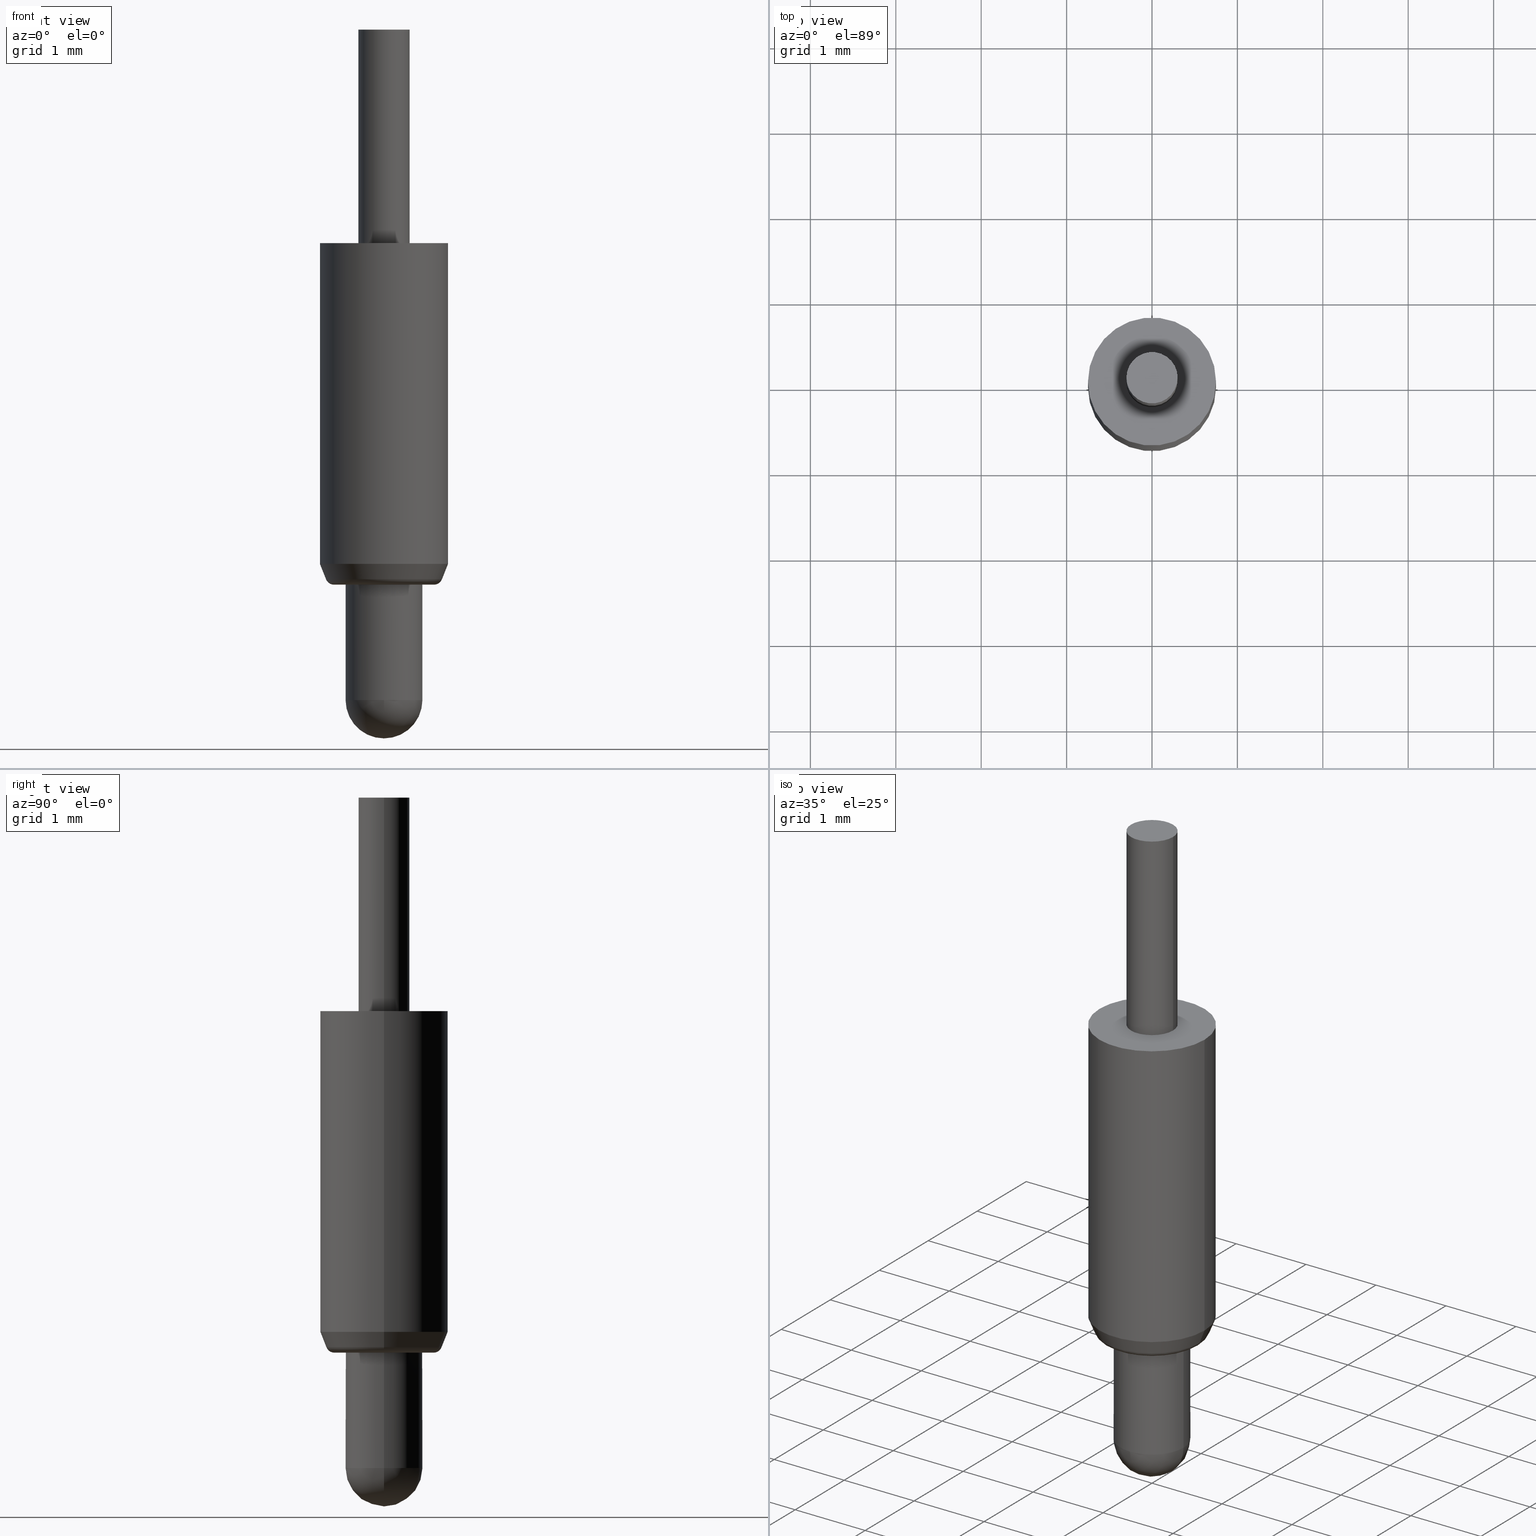
[diagram: canonical four-view strip — front | top / right | iso, engineering-drawing reading convention]
A machine part, canonical four-view strip (front | top / right | iso — engineering-drawing reading convention). The complete STEP part file that produces these views, byte-faithful:
ISO-10303-21;
HEADER;
FILE_DESCRIPTION (( 'STEP AP214' ),
    '1' );
FILE_NAME ('UEBK-12899_2017_08_28.STEP',
    '2017-08-29T11:48:51',
    ( '' ),
    ( '' ),
    'SwSTEP 2.0',
    'SolidWorks 2017',
    '' );
FILE_SCHEMA (( 'AUTOMOTIVE_DESIGN' ));
ENDSEC;

DATA;
#1 = PLANE ( 'NONE',  #302 ) ;
#2 = CIRCLE ( 'NONE', #178, 0.6784211071426866600 ) ;
#3 = VERTEX_POINT ( 'NONE', #106 ) ;
#4 = PRESENTATION_LAYER_ASSIGNMENT (  '', '', ( #55 ) ) ;
#5 = ORIENTED_EDGE ( 'NONE', *, *, #316, .T. ) ;
#6 = ORIENTED_EDGE ( 'NONE', *, *, #15, .F. ) ;
#7 = EDGE_LOOP ( 'NONE', ( #6, #317, #136 ) ) ;
#8 = PRODUCT_DEFINITION_CONTEXT ( 'detailed design', #366, 'design' ) ;
#9 = ADVANCED_FACE ( 'NONE', ( #240 ), #392, .T. ) ;
#10 = VECTOR ( 'NONE', #355, 1000.000000000000000 ) ;
#11 = SHAPE_DEFINITION_REPRESENTATION ( #175, #218 ) ;
#12 = EDGE_CURVE ( 'NONE', #266, #188, #50, .T. ) ;
#13 = AXIS2_PLACEMENT_3D ( 'NONE', #254, #154, #19 ) ;
#14 = DIRECTION ( 'NONE',  ( -0.0000000000000000000, 1.000000000000000000, 0.0000000000000000000 ) ) ;
#15 = EDGE_CURVE ( 'NONE', #144, #170, #217, .T. ) ;
#16 = COLOUR_RGB ( '',0.8274509803921568100, 0.6666666666666666300, 0.1294117647058823400 ) ;
#17 = DIRECTION ( 'NONE',  ( -0.0000000000000000000, -0.0000000000000000000, 1.000000000000000000 ) ) ;
#18 = DIRECTION ( 'NONE',  ( 1.000000000000000000, 0.0000000000000000000, 0.0000000000000000000 ) ) ;
#19 = DIRECTION ( 'NONE',  ( 1.000000000000000000, 0.0000000000000000000, 0.0000000000000000000 ) ) ;
#20 = LINE ( 'NONE', #165, #36 ) ;
#21 = CARTESIAN_POINT ( 'NONE',  ( -0.2999999999999999300, 3.673940397442058900E-017, 5.799999999999999800 ) ) ;
#22 = CARTESIAN_POINT ( 'NONE',  ( 0.2999999999999998200, 0.0000000000000000000, 8.300000000000000700 ) ) ;
#23 = FILL_AREA_STYLE ('',( #84 ) ) ;
#24 = CARTESIAN_POINT ( 'NONE',  ( 0.7499999999999995600, 0.0000000000000000000, 5.799999999999999800 ) ) ;
#25 = AXIS2_PLACEMENT_3D ( 'NONE', #189, #221, #47 ) ;
#26 = EDGE_LOOP ( 'NONE', ( #83, #292, #402, #235 ) ) ;
#27 = CARTESIAN_POINT ( 'NONE',  ( 0.0000000000000000000, 0.0000000000000000000, 1.799999999999999600 ) ) ;
#28 = APPLICATION_PROTOCOL_DEFINITION ( 'draft international standard', 'automotive_design', 1998, #233 ) ;
#29 = CARTESIAN_POINT ( 'NONE',  ( -0.5854911145946992700, 7.170198194176145800E-017, 1.899999999999999900 ) ) ;
#30 = AXIS2_PLACEMENT_3D ( 'NONE', #114, #252, #18 ) ;
#31 = AXIS2_PLACEMENT_3D ( 'NONE', #161, #248, #151 ) ;
#32 = DIRECTION ( 'NONE',  ( -0.3693259380318421000, 4.522938278527891600E-017, 0.9292999254798742800 ) ) ;
#33 = ORIENTED_EDGE ( 'NONE', *, *, #241, .F. ) ;
#34 = ORIENTED_EDGE ( 'NONE', *, *, #419, .F. ) ;
#35 = CARTESIAN_POINT ( 'NONE',  ( 0.0000000000000000000, 0.0000000000000000000, 5.799999999999999800 ) ) ;
#36 = VECTOR ( 'NONE', #32, 1000.000000000000100 ) ;
#37 = AXIS2_PLACEMENT_3D ( 'NONE', #35, #196, #395 ) ;
#38 = ORIENTED_EDGE ( 'NONE', *, *, #377, .F. ) ;
#39 = ORIENTED_EDGE ( 'NONE', *, *, #231, .T. ) ;
#40 = EDGE_LOOP ( 'NONE', ( #339, #210, #143, #391 ) ) ;
#41 = LINE ( 'NONE', #153, #270 ) ;
#42 = CIRCLE ( 'NONE', #406, 0.4499999999999997900 ) ;
#43 = CLOSED_SHELL ( 'NONE', ( #404, #9, #308, #271, #310, #141, #174, #343, #173, #207, #403, #177, #99, #344, #208 ) ) ;
#44 = ORIENTED_EDGE ( 'NONE', *, *, #275, .T. ) ;
#45 = FACE_OUTER_BOUND ( 'NONE', #216, .T. ) ;
#46 = CARTESIAN_POINT ( 'NONE',  ( -0.4499999999999997900, 5.510910596163086500E-017, 1.799999999999999600 ) ) ;
#47 = DIRECTION ( 'NONE',  ( 1.000000000000000000, 0.0000000000000000000, 0.0000000000000000000 ) ) ;
#48 = DIRECTION ( 'NONE',  ( -0.0000000000000000000, -0.0000000000000000000, 1.000000000000000000 ) ) ;
#49 = CARTESIAN_POINT ( 'NONE',  ( 0.0000000000000000000, 0.0000000000000000000, 0.4500000000000007300 ) ) ;
#50 = LINE ( 'NONE', #245, #384 ) ;
#51 = DIRECTION ( 'NONE',  ( 1.000000000000000000, 0.0000000000000000000, 0.0000000000000000000 ) ) ;
#52 = SURFACE_STYLE_USAGE ( .BOTH. , #253 ) ;
#53 = DIRECTION ( 'NONE',  ( 0.3693259380318421000, 0.0000000000000000000, 0.9292999254798742800 ) ) ;
#54 = ORIENTED_EDGE ( 'NONE', *, *, #142, .T. ) ;
#55 = STYLED_ITEM ( 'NONE', ( #69 ), #218 ) ;
#56 = DIRECTION ( 'NONE',  ( -0.0000000000000000000, -0.0000000000000000000, 1.000000000000000000 ) ) ;
#57 = CIRCLE ( 'NONE', #283, 0.2999999999999999900 ) ;
#58 = DIRECTION ( 'NONE',  ( -0.0000000000000000000, -0.0000000000000000000, 1.000000000000000000 ) ) ;
#59 = FILL_AREA_STYLE ('',( #338 ) ) ;
#60 = DIRECTION ( 'NONE',  ( 1.000000000000000000, 0.0000000000000000000, 0.0000000000000000000 ) ) ;
#61 = DIRECTION ( 'NONE',  ( 1.000000000000000000, 0.0000000000000000000, 0.0000000000000000000 ) ) ;
#62 = VECTOR ( 'NONE', #17, 1000.000000000000000 ) ;
#63 = DIRECTION ( 'NONE',  ( -1.000000000000000000, 0.0000000000000000000, -0.0000000000000000000 ) ) ;
#64 = AXIS2_PLACEMENT_3D ( 'NONE', #198, #56, #168 ) ;
#65 = VERTEX_POINT ( 'NONE', #46 ) ;
#66 = CYLINDRICAL_SURFACE ( 'NONE', #98, 0.2999999999999998200 ) ;
#67 = AXIS2_PLACEMENT_3D ( 'NONE', #256, #115, #220 ) ;
#68 = LINE ( 'NONE', #146, #62 ) ;
#69 = PRESENTATION_STYLE_ASSIGNMENT (( #362 ) ) ;
#70 = EDGE_CURVE ( 'NONE', #108, #309, #148, .T. ) ;
#71 = ORIENTED_EDGE ( 'NONE', *, *, #97, .T. ) ;
#72 = AXIS2_PLACEMENT_3D ( 'NONE', #250, #388, #285 ) ;
#73 = DIRECTION ( 'NONE',  ( -0.0000000000000000000, -0.0000000000000000000, 1.000000000000000000 ) ) ;
#74 = AXIS2_PLACEMENT_3D ( 'NONE', #109, #14, #145 ) ;
#75 = DIRECTION ( 'NONE',  ( 0.0000000000000000000, 0.0000000000000000000, -1.000000000000000000 ) ) ;
#76 = FACE_OUTER_BOUND ( 'NONE', #139, .T. ) ;
#77 = CARTESIAN_POINT ( 'NONE',  ( 0.0000000000000000000, 0.0000000000000000000, 1.800000000000000000 ) ) ;
#78 = DIRECTION ( 'NONE',  ( 1.000000000000000000, 0.0000000000000000000, 0.0000000000000000000 ) ) ;
#79 = ORIENTED_EDGE ( 'NONE', *, *, #374, .T. ) ;
#80 = DIRECTION ( 'NONE',  ( -0.0000000000000000000, -0.0000000000000000000, 1.000000000000000000 ) ) ;
#81 = DIRECTION ( 'NONE',  ( 1.000000000000000000, 0.0000000000000000000, 0.0000000000000000000 ) ) ;
#82 = FACE_OUTER_BOUND ( 'NONE', #239, .T. ) ;
#83 = ORIENTED_EDGE ( 'NONE', *, *, #205, .F. ) ;
#84 = FILL_AREA_STYLE_COLOUR ( '', #16 ) ;
#85 = PLANE ( 'NONE',  #273 ) ;
#86 = EDGE_LOOP ( 'NONE', ( #346, #269, #44, #356 ) ) ;
#87 = CARTESIAN_POINT ( 'NONE',  ( 0.0000000000000000000, 0.0000000000000000000, 8.300000000000000700 ) ) ;
#88 = DIRECTION ( 'NONE',  ( 1.000000000000000000, 0.0000000000000000000, 0.0000000000000000000 ) ) ;
#89 = SURFACE_SIDE_STYLE ('',( #353 ) ) ;
#90 = CARTESIAN_POINT ( 'NONE',  ( 0.0000000000000000000, 0.0000000000000000000, 1.899999999999999900 ) ) ;
#91 = AXIS2_PLACEMENT_3D ( 'NONE', #417, #389, #186 ) ;
#92 = CIRCLE ( 'NONE', #184, 0.4499999999999997900 ) ;
#93 = CARTESIAN_POINT ( 'NONE',  ( -0.4499999999999999000, 5.510910596163087700E-017, 8.300000000000000700 ) ) ;
#94 = DIRECTION ( 'NONE',  ( 1.000000000000000000, 0.0000000000000000000, 0.0000000000000000000 ) ) ;
#95 = EDGE_LOOP ( 'NONE', ( #54, #314 ) ) ;
#96 = PRODUCT_DEFINITION ( 'UNKNOWN', '', #407, #8 ) ;
#97 = EDGE_CURVE ( 'NONE', #156, #103, #68, .T. ) ;
#98 = AXIS2_PLACEMENT_3D ( 'NONE', #414, #80, #324 ) ;
#99 = ADVANCED_FACE ( 'NONE', ( #397 ), #190, .F. ) ;
#100 = ORIENTED_EDGE ( 'NONE', *, *, #275, .F. ) ;
#101 = AXIS2_PLACEMENT_3D ( 'NONE', #320, #48, #78 ) ;
#102 = TOROIDAL_SURFACE ( 'NONE', #421, 0.5854911145946992700, 0.1000000000000000100 ) ;
#103 = VERTEX_POINT ( 'NONE', #276 ) ;
#104 = SPHERICAL_SURFACE ( 'NONE', #385, 0.4500000000000000100 ) ;
#105 = AXIS2_PLACEMENT_3D ( 'NONE', #336, #335, #263 ) ;
#106 = CARTESIAN_POINT ( 'NONE',  ( -0.4499999999999999000, 5.510910596163087700E-017, 0.4500000000000007300 ) ) ;
#107 = ORIENTED_EDGE ( 'NONE', *, *, #219, .T. ) ;
#108 = VERTEX_POINT ( 'NONE', #224 ) ;
#109 = CARTESIAN_POINT ( 'NONE',  ( 0.0000000000000000000, 0.0000000000000000000, 0.4500000000000007300 ) ) ;
#110 =( GEOMETRIC_REPRESENTATION_CONTEXT ( 3 ) GLOBAL_UNCERTAINTY_ASSIGNED_CONTEXT ( ( #360 ) ) GLOBAL_UNIT_ASSIGNED_CONTEXT ( ( #383, #386, #279 ) ) REPRESENTATION_CONTEXT ( 'NONE', 'WORKASPACE' ) );
#111 = ORIENTED_EDGE ( 'NONE', *, *, #289, .F. ) ;
#112 = DIRECTION ( 'NONE',  ( 1.224646799147353200E-016, 1.000000000000000000, 0.0000000000000000000 ) ) ;
#113 = CARTESIAN_POINT ( 'NONE',  ( 0.4499999999999999000, 0.0000000000000000000, 0.4500000000000007300 ) ) ;
#114 = CARTESIAN_POINT ( 'NONE',  ( 0.0000000000000000000, 0.0000000000000000000, 8.300000000000000700 ) ) ;
#115 = DIRECTION ( 'NONE',  ( -0.0000000000000000000, -0.0000000000000000000, 1.000000000000000000 ) ) ;
#116 = CIRCLE ( 'NONE', #105, 0.4499999999999999000 ) ;
#117 = DIRECTION ( 'NONE',  ( 0.0000000000000000000, 0.0000000000000000000, -1.000000000000000000 ) ) ;
#118 = EDGE_CURVE ( 'NONE', #266, #408, #341, .T. ) ;
#119 = DIRECTION ( 'NONE',  ( -0.0000000000000000000, -0.0000000000000000000, 1.000000000000000000 ) ) ;
#120 = ORIENTED_EDGE ( 'NONE', *, *, #215, .F. ) ;
#121 = DIRECTION ( 'NONE',  ( -0.0000000000000000000, -0.0000000000000000000, 1.000000000000000000 ) ) ;
#122 = CARTESIAN_POINT ( 'NONE',  ( 0.0000000000000000000, 0.0000000000000000000, 5.799999999999999800 ) ) ;
#123 = FACE_OUTER_BOUND ( 'NONE', #228, .T. ) ;
#124 = ORIENTED_EDGE ( 'NONE', *, *, #267, .F. ) ;
#125 = DIRECTION ( 'NONE',  ( 1.000000000000000000, 0.0000000000000000000, 0.0000000000000000000 ) ) ;
#126 = DIRECTION ( 'NONE',  ( -0.0000000000000000000, -0.0000000000000000000, 1.000000000000000000 ) ) ;
#127 = UNCERTAINTY_MEASURE_WITH_UNIT (LENGTH_MEASURE( 1.000000000000000100E-005 ), #163, 'distance_accuracy_value', 'NONE');
#128 = FACE_OUTER_BOUND ( 'NONE', #180, .T. ) ;
#129 = DIRECTION ( 'NONE',  ( -0.0000000000000000000, -0.0000000000000000000, 1.000000000000000000 ) ) ;
#130 =( LENGTH_UNIT ( ) NAMED_UNIT ( * ) SI_UNIT ( .MILLI., .METRE. ) );
#131 = CARTESIAN_POINT ( 'NONE',  ( -0.7500000000000000000, 9.184850993605150900E-017, 2.043174604063049000 ) ) ;
#132 = DIRECTION ( 'NONE',  ( -0.0000000000000000000, -0.0000000000000000000, 1.000000000000000000 ) ) ;
#133 = PRODUCT ( 'UEBK-12899_2017_08_28', 'UEBK-12899_2017_08_28', '', ( #164 ) ) ;
#134 = MECHANICAL_DESIGN_GEOMETRIC_PRESENTATION_REPRESENTATION (  '', ( #55 ), #367 ) ;
#135 = EDGE_LOOP ( 'NONE', ( #418, #229 ) ) ;
#136 = ORIENTED_EDGE ( 'NONE', *, *, #307, .F. ) ;
#137 = CIRCLE ( 'NONE', #287, 0.7499999999999995600 ) ;
#138 = ORIENTED_EDGE ( 'NONE', *, *, #289, .T. ) ;
#139 = EDGE_LOOP ( 'NONE', ( #390, #357, #79, #34 ) ) ;
#140 = AXIS2_PLACEMENT_3D ( 'NONE', #49, #225, #281 ) ;
#141 = ADVANCED_FACE ( 'NONE', ( #378 ), #159, .T. ) ;
#142 = EDGE_CURVE ( 'NONE', #380, #103, #222, .T. ) ;
#143 = ORIENTED_EDGE ( 'NONE', *, *, #219, .F. ) ;
#144 = VERTEX_POINT ( 'NONE', #420 ) ;
#145 = DIRECTION ( 'NONE',  ( 1.000000000000000000, 0.0000000000000000000, 0.0000000000000000000 ) ) ;
#146 = CARTESIAN_POINT ( 'NONE',  ( -0.2999999999999998200, 3.673940397442057600E-017, 8.300000000000000700 ) ) ;
#147 = CARTESIAN_POINT ( 'NONE',  ( 0.7500000000000000000, 0.0000000000000000000, 2.043174604063049000 ) ) ;
#148 = CIRCLE ( 'NONE', #371, 0.1000000000000000500 ) ;
#149 = CARTESIAN_POINT ( 'NONE',  ( 0.0000000000000000000, 0.0000000000000000000, 0.4500000000000007300 ) ) ;
#150 = DIRECTION ( 'NONE',  ( 0.0000000000000000000, 0.0000000000000000000, 1.000000000000000000 ) ) ;
#151 = DIRECTION ( 'NONE',  ( -1.000000000000000000, 0.0000000000000000000, -0.0000000000000000000 ) ) ;
#152 = CARTESIAN_POINT ( 'NONE',  ( 0.0000000000000000000, 0.0000000000000000000, 5.799999999999999800 ) ) ;
#153 = CARTESIAN_POINT ( 'NONE',  ( -0.7499999999999997800, 9.184850993605147200E-017, 8.300000000000000700 ) ) ;
#154 = DIRECTION ( 'NONE',  ( 0.0000000000000000000, 0.0000000000000000000, -1.000000000000000000 ) ) ;
#155 = ORIENTED_EDGE ( 'NONE', *, *, #394, .T. ) ;
#156 = VERTEX_POINT ( 'NONE', #21 ) ;
#157 = EDGE_CURVE ( 'NONE', #144, #3, #405, .T. ) ;
#158 = CARTESIAN_POINT ( 'NONE',  ( 0.0000000000000000000, 0.0000000000000000000, 8.300000000000000700 ) ) ;
#159 = CYLINDRICAL_SURFACE ( 'NONE', #67, 0.4499999999999999000 ) ;
#160 = MANIFOLD_SOLID_BREP ( 'Verrundung2', #43 ) ;
#161 = CARTESIAN_POINT ( 'NONE',  ( -0.2999999999999996600, 0.0000000000000000000, 8.300000000000000700 ) ) ;
#162 = ORIENTED_EDGE ( 'NONE', *, *, #231, .F. ) ;
#163 =( LENGTH_UNIT ( ) NAMED_UNIT ( * ) SI_UNIT ( .MILLI., .METRE. ) );
#164 = PRODUCT_CONTEXT ( 'NONE', #233, 'mechanical' ) ;
#165 = CARTESIAN_POINT ( 'NONE',  ( -0.6533566168589427500, 8.001310895380479100E-017, 1.799999999999999600 ) ) ;
#166 = CYLINDRICAL_SURFACE ( 'NONE', #393, 0.4499999999999999000 ) ;
#167 = AXIS2_PLACEMENT_3D ( 'NONE', #158, #119, #290 ) ;
#168 = DIRECTION ( 'NONE',  ( 1.000000000000000000, 0.0000000000000000000, 0.0000000000000000000 ) ) ;
#169 = CARTESIAN_POINT ( 'NONE',  ( -0.5854911145946992700, 7.739230283769545600E-017, 1.800000000000000000 ) ) ;
#170 = VERTEX_POINT ( 'NONE', #113 ) ;
#171 = ORIENTED_EDGE ( 'NONE', *, *, #410, .T. ) ;
#172 = FACE_OUTER_BOUND ( 'NONE', #313, .T. ) ;
#173 = ADVANCED_FACE ( 'NONE', ( #197 ), #206, .T. ) ;
#174 = ADVANCED_FACE ( 'NONE', ( #76 ), #166, .T. ) ;
#175 = PRODUCT_DEFINITION_SHAPE ( 'NONE', 'NONE',  #96 ) ;
#176 = FACE_OUTER_BOUND ( 'NONE', #413, .T. ) ;
#177 = ADVANCED_FACE ( 'NONE', ( #370 ), #66, .T. ) ;
#178 = AXIS2_PLACEMENT_3D ( 'NONE', #427, #58, #295 ) ;
#179 = ORIENTED_EDGE ( 'NONE', *, *, #205, .T. ) ;
#180 = EDGE_LOOP ( 'NONE', ( #422, #243, #38 ) ) ;
#181 = VERTEX_POINT ( 'NONE', #423 ) ;
#182 = DIRECTION ( 'NONE',  ( 0.0000000000000000000, 0.0000000000000000000, -1.000000000000000000 ) ) ;
#183 = LINE ( 'NONE', #22, #10 ) ;
#184 = AXIS2_PLACEMENT_3D ( 'NONE', #27, #260, #333 ) ;
#185 = AXIS2_PLACEMENT_3D ( 'NONE', #149, #326, #354 ) ;
#186 = DIRECTION ( 'NONE',  ( -1.000000000000000000, 0.0000000000000000000, 0.0000000000000000000 ) ) ;
#187 = EDGE_LOOP ( 'NONE', ( #120, #33 ) ) ;
#188 = VERTEX_POINT ( 'NONE', #24 ) ;
#189 = CARTESIAN_POINT ( 'NONE',  ( 0.0000000000000000000, 0.0000000000000000000, 1.799999999999999600 ) ) ;
#190 = PLANE ( 'NONE',  #31 ) ;
#191 = DIRECTION ( 'NONE',  ( -0.0000000000000000000, -0.0000000000000000000, 1.000000000000000000 ) ) ;
#192 = CARTESIAN_POINT ( 'NONE',  ( 0.0000000000000000000, 0.0000000000000000000, 8.300000000000000700 ) ) ;
#193 = CARTESIAN_POINT ( 'NONE',  ( 0.4499999999999997900, 0.0000000000000000000, 1.799999999999999600 ) ) ;
#194 = EDGE_LOOP ( 'NONE', ( #107, #351 ) ) ;
#195 = STYLED_ITEM ( 'NONE', ( #244 ), #160 ) ;
#196 = DIRECTION ( 'NONE',  ( -0.0000000000000000000, -0.0000000000000000000, 1.000000000000000000 ) ) ;
#197 = FACE_OUTER_BOUND ( 'NONE', #203, .T. ) ;
#198 = CARTESIAN_POINT ( 'NONE',  ( 0.0000000000000000000, 0.0000000000000000000, 2.043174604063049000 ) ) ;
#199 = CARTESIAN_POINT ( 'NONE',  ( -0.6784211071426866600, 8.746556683484048800E-017, 1.863067406196815500 ) ) ;
#200 = ORIENTED_EDGE ( 'NONE', *, *, #322, .F. ) ;
#201 = TOROIDAL_SURFACE ( 'NONE', #340, 0.5854911145946992700, 0.1000000000000000100 ) ;
#202 = LINE ( 'NONE', #237, #303 ) ;
#203 = EDGE_LOOP ( 'NONE', ( #399, #138, #5, #329 ) ) ;
#204 = VECTOR ( 'NONE', #126, 1000.000000000000000 ) ;
#205 = EDGE_CURVE ( 'NONE', #408, #255, #41, .T. ) ;
#206 = CONICAL_SURFACE ( 'NONE', #72, 0.6533566168589427500, 0.3782835722240472400 ) ;
#207 = ADVANCED_FACE ( 'NONE', ( #337 ), #331, .T. ) ;
#208 = ADVANCED_FACE ( 'NONE', ( #257 ), #102, .T. ) ;
#209 = AXIS2_PLACEMENT_3D ( 'NONE', #192, #424, #381 ) ;
#210 = ORIENTED_EDGE ( 'NONE', *, *, #401, .T. ) ;
#211 = ORIENTED_EDGE ( 'NONE', *, *, #70, .F. ) ;
#212 = EDGE_CURVE ( 'NONE', #309, #372, #2, .T. ) ;
#213 = FACE_BOUND ( 'NONE', #187, .T. ) ;
#214 = CIRCLE ( 'NONE', #64, 0.7500000000000000000 ) ;
#215 = EDGE_CURVE ( 'NONE', #181, #156, #363, .T. ) ;
#216 = EDGE_LOOP ( 'NONE', ( #280, #71, #368, #100 ) ) ;
#217 = CIRCLE ( 'NONE', #334, 0.4500000000000000100 ) ;
#218 = ADVANCED_BREP_SHAPE_REPRESENTATION ( 'UEBK-12899_2017_08_28', ( #160, #268 ), #359 ) ;
#219 = EDGE_CURVE ( 'NONE', #251, #65, #92, .T. ) ;
#220 = DIRECTION ( 'NONE',  ( 1.000000000000000000, 0.0000000000000000000, 0.0000000000000000000 ) ) ;
#221 = DIRECTION ( 'NONE',  ( -0.0000000000000000000, -0.0000000000000000000, 1.000000000000000000 ) ) ;
#222 = CIRCLE ( 'NONE', #167, 0.2999999999999996600 ) ;
#223 = AXIS2_PLACEMENT_3D ( 'NONE', #87, #226, #288 ) ;
#224 = CARTESIAN_POINT ( 'NONE',  ( 0.5854911145946992700, 0.0000000000000000000, 1.800000000000000000 ) ) ;
#225 = DIRECTION ( 'NONE',  ( -0.0000000000000000000, -0.0000000000000000000, 1.000000000000000000 ) ) ;
#226 = DIRECTION ( 'NONE',  ( -0.0000000000000000000, -0.0000000000000000000, 1.000000000000000000 ) ) ;
#227 = CARTESIAN_POINT ( 'NONE',  ( 0.6784211071426866600, 0.0000000000000000000, 1.863067406196815500 ) ) ;
#228 = EDGE_LOOP ( 'NONE', ( #369, #155 ) ) ;
#229 = ORIENTED_EDGE ( 'NONE', *, *, #267, .T. ) ;
#230 = DIRECTION ( 'NONE',  ( -0.0000000000000000000, -0.0000000000000000000, 1.000000000000000000 ) ) ;
#231 = EDGE_CURVE ( 'NONE', #376, #372, #277, .T. ) ;
#232 = CIRCLE ( 'NONE', #91, 0.6784211071426866600 ) ;
#233 = APPLICATION_CONTEXT ( 'automotive_design' ) ;
#234 = DIRECTION ( 'NONE',  ( 0.0000000000000000000, 0.0000000000000000000, -1.000000000000000000 ) ) ;
#235 = ORIENTED_EDGE ( 'NONE', *, *, #394, .F. ) ;
#236 = PRESENTATION_LAYER_ASSIGNMENT (  '', '', ( #195 ) ) ;
#237 = CARTESIAN_POINT ( 'NONE',  ( 0.4499999999999999000, 0.0000000000000000000, 8.300000000000000700 ) ) ;
#238 = EDGE_CURVE ( 'NONE', #103, #380, #425, .T. ) ;
#239 = EDGE_LOOP ( 'NONE', ( #124, #39, #347, #211 ) ) ;
#240 = FACE_OUTER_BOUND ( 'NONE', #7, .T. ) ;
#241 = EDGE_CURVE ( 'NONE', #156, #181, #57, .T. ) ;
#242 = LINE ( 'NONE', #352, #400 ) ;
#243 = ORIENTED_EDGE ( 'NONE', *, *, #15, .T. ) ;
#244 = PRESENTATION_STYLE_ASSIGNMENT (( #52 ) ) ;
#245 = CARTESIAN_POINT ( 'NONE',  ( 0.7499999999999997800, 0.0000000000000000000, 8.300000000000000700 ) ) ;
#246 = AXIS2_PLACEMENT_3D ( 'NONE', #249, #121, #51 ) ;
#247 = CIRCLE ( 'NONE', #13, 0.5854911145946992700 ) ;
#248 = DIRECTION ( 'NONE',  ( 0.0000000000000000000, 0.0000000000000000000, -1.000000000000000000 ) ) ;
#249 = CARTESIAN_POINT ( 'NONE',  ( 0.0000000000000000000, 0.0000000000000000000, 8.300000000000000700 ) ) ;
#250 = CARTESIAN_POINT ( 'NONE',  ( 0.0000000000000000000, 0.0000000000000000000, 1.799999999999999600 ) ) ;
#251 = VERTEX_POINT ( 'NONE', #193 ) ;
#252 = DIRECTION ( 'NONE',  ( -0.0000000000000000000, -0.0000000000000000000, 1.000000000000000000 ) ) ;
#253 = SURFACE_SIDE_STYLE ('',( #321 ) ) ;
#254 = CARTESIAN_POINT ( 'NONE',  ( 0.0000000000000000000, 0.0000000000000000000, 1.800000000000000000 ) ) ;
#255 = VERTEX_POINT ( 'NONE', #286 ) ;
#256 = CARTESIAN_POINT ( 'NONE',  ( 0.0000000000000000000, 0.0000000000000000000, 8.300000000000000700 ) ) ;
#257 = FACE_OUTER_BOUND ( 'NONE', #293, .T. ) ;
#258 = ORIENTED_EDGE ( 'NONE', *, *, #212, .T. ) ;
#259 = DIRECTION ( 'NONE',  ( 0.0000000000000000000, -0.0000000000000000000, 1.000000000000000000 ) ) ;
#260 = DIRECTION ( 'NONE',  ( -0.0000000000000000000, -0.0000000000000000000, 1.000000000000000000 ) ) ;
#261 = CARTESIAN_POINT ( 'NONE',  ( 0.0000000000000000000, 0.0000000000000000000, 0.0000000000000000000 ) ) ;
#262 = ORIENTED_EDGE ( 'NONE', *, *, #316, .F. ) ;
#263 = DIRECTION ( 'NONE',  ( 1.000000000000000000, 0.0000000000000000000, 0.0000000000000000000 ) ) ;
#264 = FACE_OUTER_BOUND ( 'NONE', #135, .T. ) ;
#265 = CARTESIAN_POINT ( 'NONE',  ( -0.7499999999999995600, 0.0000000000000000000, 5.799999999999999800 ) ) ;
#266 = VERTEX_POINT ( 'NONE', #147 ) ;
#267 = EDGE_CURVE ( 'NONE', #376, #108, #247, .T. ) ;
#268 = AXIS2_PLACEMENT_3D ( 'NONE', #261, #150, #81 ) ;
#269 = ORIENTED_EDGE ( 'NONE', *, *, #241, .T. ) ;
#270 = VECTOR ( 'NONE', #330, 1000.000000000000000 ) ;
#271 = ADVANCED_FACE ( 'NONE', ( #172 ), #315, .T. ) ;
#272 = COLOUR_RGB ( '',0.8274509803921568100, 0.6666666666666666300, 0.1294117647058823400 ) ;
#273 = AXIS2_PLACEMENT_3D ( 'NONE', #319, #259, #61 ) ;
#274 = CARTESIAN_POINT ( 'NONE',  ( 0.5854911145946992700, 0.0000000000000000000, 1.899999999999999900 ) ) ;
#275 = EDGE_CURVE ( 'NONE', #181, #380, #183, .T. ) ;
#276 = CARTESIAN_POINT ( 'NONE',  ( -0.2999999999999996600, 3.673940397442057000E-017, 8.300000000000000700 ) ) ;
#277 = CIRCLE ( 'NONE', #412, 0.1000000000000000500 ) ;
#278 = DIRECTION ( 'NONE',  ( 0.0000000000000000000, -1.000000000000000000, 0.0000000000000000000 ) ) ;
#279 =( NAMED_UNIT ( * ) SI_UNIT ( $, .STERADIAN. ) SOLID_ANGLE_UNIT ( ) );
#280 = ORIENTED_EDGE ( 'NONE', *, *, #215, .T. ) ;
#281 = DIRECTION ( 'NONE',  ( 1.000000000000000000, 0.0000000000000000000, 0.0000000000000000000 ) ) ;
#282 = CARTESIAN_POINT ( 'NONE',  ( 0.0000000000000000000, 0.0000000000000000000, 8.300000000000000700 ) ) ;
#283 = AXIS2_PLACEMENT_3D ( 'NONE', #122, #325, #328 ) ;
#284 = LINE ( 'NONE', #93, #204 ) ;
#285 = DIRECTION ( 'NONE',  ( 1.000000000000000000, 0.0000000000000000000, 0.0000000000000000000 ) ) ;
#286 = CARTESIAN_POINT ( 'NONE',  ( -0.7499999999999995600, 9.184850993605146000E-017, 5.799999999999999800 ) ) ;
#287 = AXIS2_PLACEMENT_3D ( 'NONE', #152, #387, #358 ) ;
#288 = DIRECTION ( 'NONE',  ( 1.000000000000000000, 0.0000000000000000000, 0.0000000000000000000 ) ) ;
#289 = EDGE_CURVE ( 'NONE', #372, #309, #232, .T. ) ;
#290 = DIRECTION ( 'NONE',  ( 1.000000000000000000, 0.0000000000000000000, 0.0000000000000000000 ) ) ;
#291 = DIRECTION ( 'NONE',  ( -0.0000000000000000000, -0.0000000000000000000, 1.000000000000000000 ) ) ;
#292 = ORIENTED_EDGE ( 'NONE', *, *, #361, .T. ) ;
#293 = EDGE_LOOP ( 'NONE', ( #162, #200, #409, #111 ) ) ;
#294 = APPLICATION_PROTOCOL_DEFINITION ( 'draft international standard', 'automotive_design', 1998, #366 ) ;
#295 = DIRECTION ( 'NONE',  ( -1.000000000000000000, 0.0000000000000000000, 0.0000000000000000000 ) ) ;
#296 =( NAMED_UNIT ( * ) PLANE_ANGLE_UNIT ( ) SI_UNIT ( $, .RADIAN. ) );
#297 = CIRCLE ( 'NONE', #382, 0.5854911145946992700 ) ;
#298 = CARTESIAN_POINT ( 'NONE',  ( 0.0000000000000000000, 0.0000000000000000000, 5.799999999999999800 ) ) ;
#299 = DIRECTION ( 'NONE',  ( 1.000000000000000000, 0.0000000000000000000, 0.0000000000000000000 ) ) ;
#300 = UNCERTAINTY_MEASURE_WITH_UNIT (LENGTH_MEASURE( 1.000000000000000100E-005 ), #130, 'distance_accuracy_value', 'NONE');
#301 = CARTESIAN_POINT ( 'NONE',  ( 0.0000000000000000000, 0.0000000000000000000, 1.799999999999999600 ) ) ;
#302 = AXIS2_PLACEMENT_3D ( 'NONE', #265, #234, #63 ) ;
#303 = VECTOR ( 'NONE', #332, 1000.000000000000000 ) ;
#304 = AXIS2_PLACEMENT_3D ( 'NONE', #298, #129, #60 ) ;
#305 = ORIENTED_EDGE ( 'NONE', *, *, #118, .F. ) ;
#306 = CYLINDRICAL_SURFACE ( 'NONE', #246, 0.2999999999999998200 ) ;
#307 = EDGE_CURVE ( 'NONE', #170, #3, #349, .T. ) ;
#308 = ADVANCED_FACE ( 'NONE', ( #45 ), #306, .T. ) ;
#309 = VERTEX_POINT ( 'NONE', #227 ) ;
#310 = ADVANCED_FACE ( 'NONE', ( #176 ), #415, .T. ) ;
#311 =( NAMED_UNIT ( * ) PLANE_ANGLE_UNIT ( ) SI_UNIT ( $, .RADIAN. ) );
#312 = CARTESIAN_POINT ( 'NONE',  ( 0.0000000000000000000, 0.0000000000000000000, 0.4500000000000007300 ) ) ;
#313 = EDGE_LOOP ( 'NONE', ( #348, #179, #373, #398 ) ) ;
#314 = ORIENTED_EDGE ( 'NONE', *, *, #238, .T. ) ;
#315 = CYLINDRICAL_SURFACE ( 'NONE', #209, 0.7499999999999997800 ) ;
#316 = EDGE_CURVE ( 'NONE', #309, #266, #242, .T. ) ;
#317 = ORIENTED_EDGE ( 'NONE', *, *, #157, .T. ) ;
#318 =( NAMED_UNIT ( * ) SI_UNIT ( $, .STERADIAN. ) SOLID_ANGLE_UNIT ( ) );
#319 = CARTESIAN_POINT ( 'NONE',  ( -0.6533566168589427500, 0.0000000000000000000, 1.800000000000000000 ) ) ;
#320 = CARTESIAN_POINT ( 'NONE',  ( 0.0000000000000000000, 0.0000000000000000000, 2.043174604063049000 ) ) ;
#321 = SURFACE_STYLE_FILL_AREA ( #23 ) ;
#322 = EDGE_CURVE ( 'NONE', #108, #376, #297, .T. ) ;
#323 = DIRECTION ( 'NONE',  ( 1.000000000000000000, 0.0000000000000000000, 0.0000000000000000000 ) ) ;
#324 = DIRECTION ( 'NONE',  ( 1.000000000000000000, 0.0000000000000000000, 0.0000000000000000000 ) ) ;
#325 = DIRECTION ( 'NONE',  ( -0.0000000000000000000, -0.0000000000000000000, 1.000000000000000000 ) ) ;
#326 = DIRECTION ( 'NONE',  ( 1.224646799147353200E-016, 1.000000000000000000, 0.0000000000000000000 ) ) ;
#327 = PRODUCT_RELATED_PRODUCT_CATEGORY ( 'part', '', ( #133 ) ) ;
#328 = DIRECTION ( 'NONE',  ( 1.000000000000000000, 0.0000000000000000000, 0.0000000000000000000 ) ) ;
#329 = ORIENTED_EDGE ( 'NONE', *, *, #361, .F. ) ;
#330 = DIRECTION ( 'NONE',  ( -0.0000000000000000000, -0.0000000000000000000, 1.000000000000000000 ) ) ;
#331 = CYLINDRICAL_SURFACE ( 'NONE', #223, 0.7499999999999997800 ) ;
#332 = DIRECTION ( 'NONE',  ( -0.0000000000000000000, -0.0000000000000000000, 1.000000000000000000 ) ) ;
#333 = DIRECTION ( 'NONE',  ( 1.000000000000000000, 0.0000000000000000000, 0.0000000000000000000 ) ) ;
#334 = AXIS2_PLACEMENT_3D ( 'NONE', #312, #379, #182 ) ;
#335 = DIRECTION ( 'NONE',  ( -0.0000000000000000000, -0.0000000000000000000, 1.000000000000000000 ) ) ;
#336 = CARTESIAN_POINT ( 'NONE',  ( 0.0000000000000000000, 0.0000000000000000000, 0.4500000000000007300 ) ) ;
#337 = FACE_OUTER_BOUND ( 'NONE', #26, .T. ) ;
#338 = FILL_AREA_STYLE_COLOUR ( '', #272 ) ;
#339 = ORIENTED_EDGE ( 'NONE', *, *, #307, .T. ) ;
#340 = AXIS2_PLACEMENT_3D ( 'NONE', #90, #132, #299 ) ;
#341 = CIRCLE ( 'NONE', #101, 0.7500000000000000000 ) ;
#342 = EDGE_CURVE ( 'NONE', #188, #255, #137, .T. ) ;
#343 = ADVANCED_FACE ( 'NONE', ( #264, #411 ), #85, .F. ) ;
#344 = ADVANCED_FACE ( 'NONE', ( #128 ), #104, .T. ) ;
#345 = MECHANICAL_DESIGN_GEOMETRIC_PRESENTATION_REPRESENTATION (  '', ( #195 ), #110 ) ;
#346 = ORIENTED_EDGE ( 'NONE', *, *, #97, .F. ) ;
#347 = ORIENTED_EDGE ( 'NONE', *, *, #212, .F. ) ;
#348 = ORIENTED_EDGE ( 'NONE', *, *, #118, .T. ) ;
#349 = CIRCLE ( 'NONE', #140, 0.4499999999999999000 ) ;
#350 = DIRECTION ( 'NONE',  ( 1.000000000000000000, 0.0000000000000000000, 0.0000000000000000000 ) ) ;
#351 = ORIENTED_EDGE ( 'NONE', *, *, #419, .T. ) ;
#352 = CARTESIAN_POINT ( 'NONE',  ( 0.6533566168589427500, 0.0000000000000000000, 1.799999999999999600 ) ) ;
#353 = SURFACE_STYLE_FILL_AREA ( #59 ) ;
#354 = DIRECTION ( 'NONE',  ( -1.000000000000000000, 1.224646799147353000E-016, 0.0000000000000000000 ) ) ;
#355 = DIRECTION ( 'NONE',  ( -0.0000000000000000000, -0.0000000000000000000, 1.000000000000000000 ) ) ;
#356 = ORIENTED_EDGE ( 'NONE', *, *, #238, .F. ) ;
#357 = ORIENTED_EDGE ( 'NONE', *, *, #377, .T. ) ;
#358 = DIRECTION ( 'NONE',  ( 1.000000000000000000, 0.0000000000000000000, 0.0000000000000000000 ) ) ;
#359 =( GEOMETRIC_REPRESENTATION_CONTEXT ( 3 ) GLOBAL_UNCERTAINTY_ASSIGNED_CONTEXT ( ( #300 ) ) GLOBAL_UNIT_ASSIGNED_CONTEXT ( ( #130, #296, #428 ) ) REPRESENTATION_CONTEXT ( 'NONE', 'WORKASPACE' ) );
#360 = UNCERTAINTY_MEASURE_WITH_UNIT (LENGTH_MEASURE( 1.000000000000000100E-005 ), #383, 'distance_accuracy_value', 'NONE');
#361 = EDGE_CURVE ( 'NONE', #408, #266, #214, .T. ) ;
#362 = SURFACE_STYLE_USAGE ( .BOTH. , #89 ) ;
#363 = CIRCLE ( 'NONE', #304, 0.2999999999999999900 ) ;
#364 = DIRECTION ( 'NONE',  ( -0.0000000000000000000, 1.000000000000000000, 0.0000000000000000000 ) ) ;
#365 = CARTESIAN_POINT ( 'NONE',  ( 0.2999999999999996600, 0.0000000000000000000, 8.300000000000000700 ) ) ;
#366 = APPLICATION_CONTEXT ( 'automotive_design' ) ;
#367 =( GEOMETRIC_REPRESENTATION_CONTEXT ( 3 ) GLOBAL_UNCERTAINTY_ASSIGNED_CONTEXT ( ( #127 ) ) GLOBAL_UNIT_ASSIGNED_CONTEXT ( ( #163, #311, #318 ) ) REPRESENTATION_CONTEXT ( 'NONE', 'WORKASPACE' ) );
#368 = ORIENTED_EDGE ( 'NONE', *, *, #142, .F. ) ;
#369 = ORIENTED_EDGE ( 'NONE', *, *, #342, .T. ) ;
#370 = FACE_OUTER_BOUND ( 'NONE', #86, .T. ) ;
#371 = AXIS2_PLACEMENT_3D ( 'NONE', #274, #278, #75 ) ;
#372 = VERTEX_POINT ( 'NONE', #199 ) ;
#373 = ORIENTED_EDGE ( 'NONE', *, *, #342, .F. ) ;
#374 = EDGE_CURVE ( 'NONE', #170, #251, #202, .T. ) ;
#375 = CIRCLE ( 'NONE', #37, 0.7499999999999995600 ) ;
#376 = VERTEX_POINT ( 'NONE', #169 ) ;
#377 = EDGE_CURVE ( 'NONE', #3, #170, #116, .T. ) ;
#378 = FACE_OUTER_BOUND ( 'NONE', #40, .T. ) ;
#379 = DIRECTION ( 'NONE',  ( 0.0000000000000000000, -1.000000000000000000, 0.0000000000000000000 ) ) ;
#380 = VERTEX_POINT ( 'NONE', #365 ) ;
#381 = DIRECTION ( 'NONE',  ( 1.000000000000000000, 0.0000000000000000000, 0.0000000000000000000 ) ) ;
#382 = AXIS2_PLACEMENT_3D ( 'NONE', #77, #117, #323 ) ;
#383 =( LENGTH_UNIT ( ) NAMED_UNIT ( * ) SI_UNIT ( .MILLI., .METRE. ) );
#384 = VECTOR ( 'NONE', #73, 1000.000000000000000 ) ;
#385 = AXIS2_PLACEMENT_3D ( 'NONE', #396, #364, #94 ) ;
#386 =( NAMED_UNIT ( * ) PLANE_ANGLE_UNIT ( ) SI_UNIT ( $, .RADIAN. ) );
#387 = DIRECTION ( 'NONE',  ( -0.0000000000000000000, -0.0000000000000000000, 1.000000000000000000 ) ) ;
#388 = DIRECTION ( 'NONE',  ( -0.0000000000000000000, -0.0000000000000000000, 1.000000000000000000 ) ) ;
#389 = DIRECTION ( 'NONE',  ( -0.0000000000000000000, -0.0000000000000000000, 1.000000000000000000 ) ) ;
#390 = ORIENTED_EDGE ( 'NONE', *, *, #401, .F. ) ;
#391 = ORIENTED_EDGE ( 'NONE', *, *, #374, .F. ) ;
#392 = SPHERICAL_SURFACE ( 'NONE', #74, 0.4500000000000000100 ) ;
#393 = AXIS2_PLACEMENT_3D ( 'NONE', #282, #191, #350 ) ;
#394 = EDGE_CURVE ( 'NONE', #255, #188, #375, .T. ) ;
#395 = DIRECTION ( 'NONE',  ( 1.000000000000000000, 0.0000000000000000000, 0.0000000000000000000 ) ) ;
#396 = CARTESIAN_POINT ( 'NONE',  ( 0.0000000000000000000, 0.0000000000000000000, 0.4500000000000007300 ) ) ;
#397 = FACE_OUTER_BOUND ( 'NONE', #95, .T. ) ;
#398 = ORIENTED_EDGE ( 'NONE', *, *, #12, .F. ) ;
#399 = ORIENTED_EDGE ( 'NONE', *, *, #410, .F. ) ;
#400 = VECTOR ( 'NONE', #53, 1000.000000000000100 ) ;
#401 = EDGE_CURVE ( 'NONE', #3, #65, #284, .T. ) ;
#402 = ORIENTED_EDGE ( 'NONE', *, *, #12, .T. ) ;
#403 = ADVANCED_FACE ( 'NONE', ( #213, #123 ), #1, .F. ) ;
#404 = ADVANCED_FACE ( 'NONE', ( #82 ), #201, .T. ) ;
#405 = CIRCLE ( 'NONE', #185, 0.4500000000000000100 ) ;
#406 = AXIS2_PLACEMENT_3D ( 'NONE', #301, #291, #88 ) ;
#407 = PRODUCT_DEFINITION_FORMATION_WITH_SPECIFIED_SOURCE ( 'ANY', '', #133, .NOT_KNOWN. ) ;
#408 = VERTEX_POINT ( 'NONE', #131 ) ;
#409 = ORIENTED_EDGE ( 'NONE', *, *, #70, .T. ) ;
#410 = EDGE_CURVE ( 'NONE', #372, #408, #20, .T. ) ;
#411 = FACE_BOUND ( 'NONE', #194, .T. ) ;
#412 = AXIS2_PLACEMENT_3D ( 'NONE', #29, #112, #416 ) ;
#413 = EDGE_LOOP ( 'NONE', ( #258, #171, #305, #262 ) ) ;
#414 = CARTESIAN_POINT ( 'NONE',  ( 0.0000000000000000000, 0.0000000000000000000, 8.300000000000000700 ) ) ;
#415 = CONICAL_SURFACE ( 'NONE', #25, 0.6533566168589427500, 0.3782835722240472400 ) ;
#416 = DIRECTION ( 'NONE',  ( -1.000000000000000000, 1.224646799147352000E-016, 0.0000000000000000000 ) ) ;
#417 = CARTESIAN_POINT ( 'NONE',  ( 0.0000000000000000000, 0.0000000000000000000, 1.863067406196815500 ) ) ;
#418 = ORIENTED_EDGE ( 'NONE', *, *, #322, .T. ) ;
#419 = EDGE_CURVE ( 'NONE', #65, #251, #42, .T. ) ;
#420 = CARTESIAN_POINT ( 'NONE',  ( 2.755455298081544500E-017, 0.0000000000000000000, 7.589415207398531000E-016 ) ) ;
#421 = AXIS2_PLACEMENT_3D ( 'NONE', #426, #230, #125 ) ;
#422 = ORIENTED_EDGE ( 'NONE', *, *, #157, .F. ) ;
#423 = CARTESIAN_POINT ( 'NONE',  ( 0.2999999999999999900, 0.0000000000000000000, 5.799999999999999800 ) ) ;
#424 = DIRECTION ( 'NONE',  ( -0.0000000000000000000, -0.0000000000000000000, 1.000000000000000000 ) ) ;
#425 = CIRCLE ( 'NONE', #30, 0.2999999999999996600 ) ;
#426 = CARTESIAN_POINT ( 'NONE',  ( 0.0000000000000000000, 0.0000000000000000000, 1.899999999999999900 ) ) ;
#427 = CARTESIAN_POINT ( 'NONE',  ( 0.0000000000000000000, 0.0000000000000000000, 1.863067406196815500 ) ) ;
#428 =( NAMED_UNIT ( * ) SI_UNIT ( $, .STERADIAN. ) SOLID_ANGLE_UNIT ( ) );
ENDSEC;
END-ISO-10303-21;
